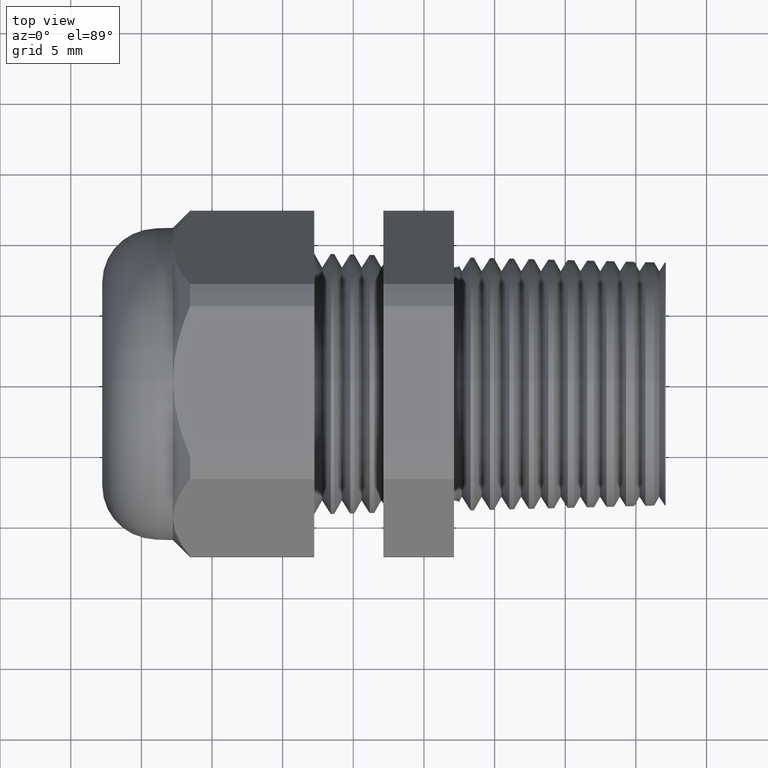
[diagram: clean part render]
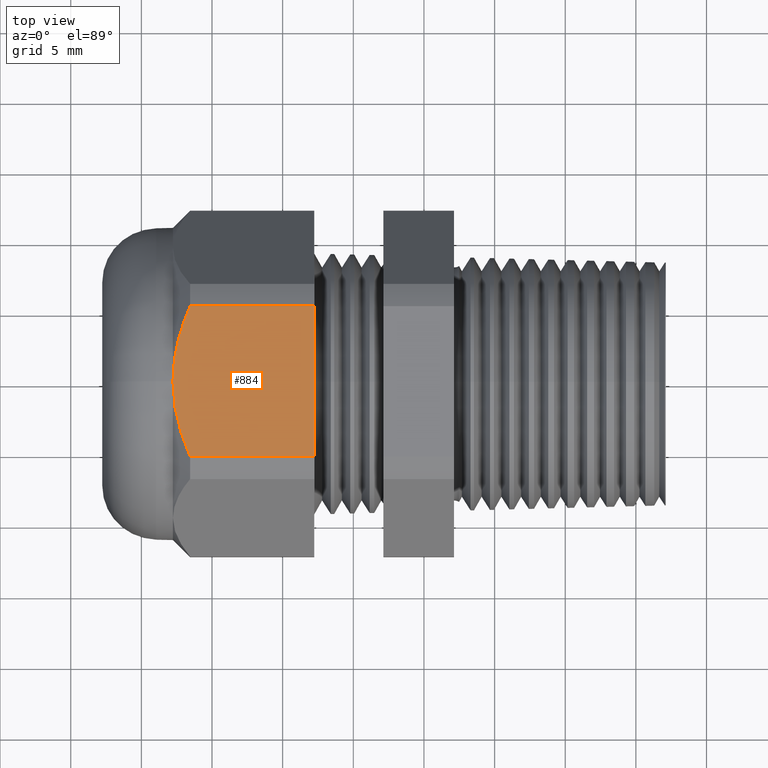
[diagram: same view with one face highlighted and labeled with its STEP entity id]
A machine part, top view. The second image highlights one B-rep face of the part: STEP entity #884.
In plain terms, the highlighted planar face has unit normal (0, 0, 1).
Its self-contained STEP definition (entity closure, byte-faithful):
#396 = VERTEX_POINT ( 'NONE', #2043 ) ;
#809 = EDGE_CURVE ( 'NONE', #888, #396, #2733, .T. ) ;
#810 = ORIENTED_EDGE ( 'NONE', *, *, #811, .T. ) ;
#811 = EDGE_CURVE ( 'NONE', #396, #813, #2778, .T. ) ;
#812 = VERTEX_POINT ( 'NONE', #2780 ) ;
#813 = VERTEX_POINT ( 'NONE', #2779 ) ;
#814 = EDGE_CURVE ( 'NONE', #812, #813, #2777, .T. ) ;
#868 = ORIENTED_EDGE ( 'NONE', *, *, #870, .F. ) ;
#869 = ORIENTED_EDGE ( 'NONE', *, *, #814, .F. ) ;
#870 = EDGE_CURVE ( 'NONE', #887, #812, #2905, .T. ) ;
#880 = EDGE_LOOP ( 'NONE', ( #885, #889, #810, #869, #868 ) ) ;
#884 = ADVANCED_FACE ( 'NONE', ( #2944 ), #2943, .T. ) ;
#885 = ORIENTED_EDGE ( 'NONE', *, *, #886, .T. ) ;
#886 = EDGE_CURVE ( 'NONE', #887, #888, #2938, .T. ) ;
#887 = VERTEX_POINT ( 'NONE', #2934 ) ;
#888 = VERTEX_POINT ( 'NONE', #2933 ) ;
#889 = ORIENTED_EDGE ( 'NONE', *, *, #809, .T. ) ;
#2043 = CARTESIAN_POINT ( 'NONE',  ( -1.093149606299212500, 0.0000000000000000000, 0.4349999999999998900 ) ) ;
#2733 = B_SPLINE_CURVE_WITH_KNOTS ( 'NONE', 3,
 ( #2790, #2789, #2788, #2787, #2786, #2785, #2784, #2783, #2782, #2781 ),
 .UNSPECIFIED., .F., .F.,
 ( 4, 2, 2, 2, 4 ),
 ( 0.008435252053080150400, 0.009795541652834693900, 0.01115583125258923700, 0.01251612085234378100, 0.01387641045209832500 ),
 .UNSPECIFIED. ) ;
#2768 = DIRECTION ( 'NONE',  ( -1.000000000000000000, 0.0000000000000000000, 0.0000000000000000000 ) ) ;
#2769 = VECTOR ( 'NONE', #2768, 39.37007874015748100 ) ;
#2770 = CARTESIAN_POINT ( 'NONE',  ( 0.2800000000000000300, -0.2095688967857592400, 0.4349999999999997200 ) ) ;
#2771 = CARTESIAN_POINT ( 'NONE',  ( -1.045299606299212600, -0.2095688967857592100, 0.4349999999999998900 ) ) ;
#2772 = CARTESIAN_POINT ( 'NONE',  ( -1.059622786696144500, -0.1765680662201017700, 0.4349999999999998900 ) ) ;
#2773 = CARTESIAN_POINT ( 'NONE',  ( -1.071818106621736900, -0.1420117476062554300, 0.4349999999999997800 ) ) ;
#2774 = CARTESIAN_POINT ( 'NONE',  ( -1.088533951596324600, -0.07204736442187360800, 0.4349999999999998900 ) ) ;
#2775 = CARTESIAN_POINT ( 'NONE',  ( -1.093149606299212500, -0.03642096200278202600, 0.4349999999999999400 ) ) ;
#2776 = CARTESIAN_POINT ( 'NONE',  ( -1.093149606299212500, 0.0000000000000000000, 0.4349999999999998900 ) ) ;
#2777 = LINE ( 'NONE', #2770, #2769 ) ;
#2778 = B_SPLINE_CURVE_WITH_KNOTS ( 'NONE', 3,
 ( #2776, #2775, #2774, #2773, #2772, #2771 ),
 .UNSPECIFIED., .F., .F.,
 ( 4, 2, 4 ),
 ( 0.01387641045209832500, 0.01660081637957174300, 0.01932522230704516000 ),
 .UNSPECIFIED. ) ;
#2779 = CARTESIAN_POINT ( 'NONE',  ( -1.045299606299212600, -0.2095688967857592100, 0.4349999999999998900 ) ) ;
#2780 = CARTESIAN_POINT ( 'NONE',  ( -0.6994488188976376600, -0.2095688967857592400, 0.4349999999999997200 ) ) ;
#2781 = CARTESIAN_POINT ( 'NONE',  ( -1.093149606299212500, 0.0000000000000000000, 0.4349999999999998900 ) ) ;
#2782 = CARTESIAN_POINT ( 'NONE',  ( -1.093149606299212800, 0.01818490237663868800, 0.4349999999999998900 ) ) ;
#2783 = CARTESIAN_POINT ( 'NONE',  ( -1.091995841155127600, 0.03631701440643154300, 0.4349999999999998900 ) ) ;
#2784 = CARTESIAN_POINT ( 'NONE',  ( -1.087583906536680100, 0.07202051439197801300, 0.4349999999999998900 ) ) ;
#2785 = CARTESIAN_POINT ( 'NONE',  ( -1.084327742407200400, 0.08966953692545996700, 0.4349999999999997800 ) ) ;
#2786 = CARTESIAN_POINT ( 'NONE',  ( -1.075971246616212400, 0.1246115883433622600, 0.4349999999999998900 ) ) ;
#2787 = CARTESIAN_POINT ( 'NONE',  ( -1.070872007821399800, 0.1419048281921317700, 0.4349999999999997800 ) ) ;
#2788 = CARTESIAN_POINT ( 'NONE',  ( -1.059099658070325600, 0.1761874914065260400, 0.4349999999999998900 ) ) ;
#2789 = CARTESIAN_POINT ( 'NONE',  ( -1.052460230889104000, 0.1930707062801151300, 0.4349999999999999400 ) ) ;
#2790 = CARTESIAN_POINT ( 'NONE',  ( -1.045299606299212800, 0.2095688967857591300, 0.4349999999999998900 ) ) ;
#2902 = DIRECTION ( 'NONE',  ( 0.0000000000000000000, -1.000000000000000000, 0.0000000000000000000 ) ) ;
#2903 = VECTOR ( 'NONE', #2902, 39.37007874015748100 ) ;
#2904 = CARTESIAN_POINT ( 'NONE',  ( -0.6994488188976376600, 0.3650000000000000500, 0.4349999999999998900 ) ) ;
#2905 = LINE ( 'NONE', #2904, #2903 ) ;
#2933 = CARTESIAN_POINT ( 'NONE',  ( -1.045299606299212800, 0.2095688967857591300, 0.4349999999999998900 ) ) ;
#2934 = CARTESIAN_POINT ( 'NONE',  ( -0.6994488188976376600, 0.2095688967857591300, 0.4349999999999998900 ) ) ;
#2935 = DIRECTION ( 'NONE',  ( -1.000000000000000000, 0.0000000000000000000, 0.0000000000000000000 ) ) ;
#2936 = VECTOR ( 'NONE', #2935, 39.37007874015748100 ) ;
#2937 = CARTESIAN_POINT ( 'NONE',  ( 0.2800000000000000300, 0.2095688967857591300, 0.4349999999999998900 ) ) ;
#2938 = LINE ( 'NONE', #2937, #2936 ) ;
#2939 = DIRECTION ( 'NONE',  ( 1.000000000000000000, 0.0000000000000000000, 0.0000000000000000000 ) ) ;
#2940 = DIRECTION ( 'NONE',  ( 0.0000000000000000000, 0.0000000000000000000, 1.000000000000000000 ) ) ;
#2941 = CARTESIAN_POINT ( 'NONE',  ( 0.2800000000000000300, -0.2095688967857591300, 0.4349999999999998900 ) ) ;
#2942 = AXIS2_PLACEMENT_3D ( 'NONE', #2941, #2940, #2939 ) ;
#2943 = PLANE ( 'NONE',  #2942 ) ;
#2944 = FACE_OUTER_BOUND ( 'NONE', #880, .T. ) ;